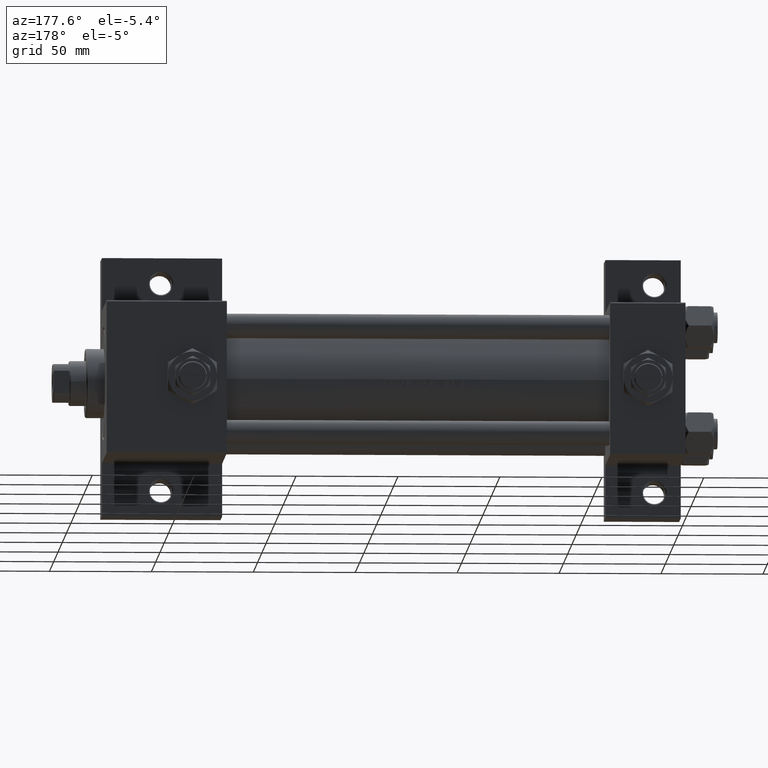
[diagram: clean part render]
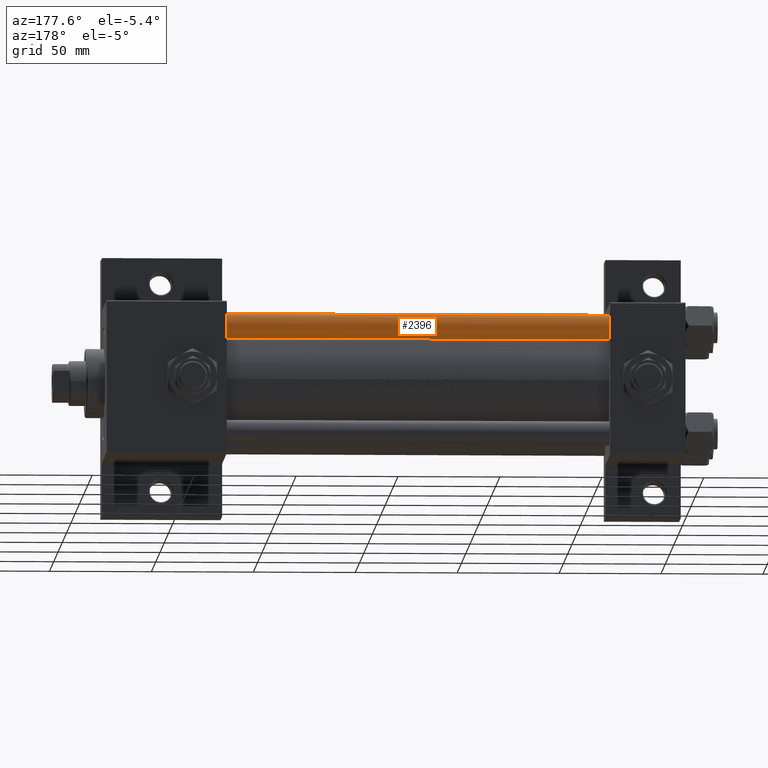
[diagram: same view with one face highlighted and labeled with its STEP entity id]
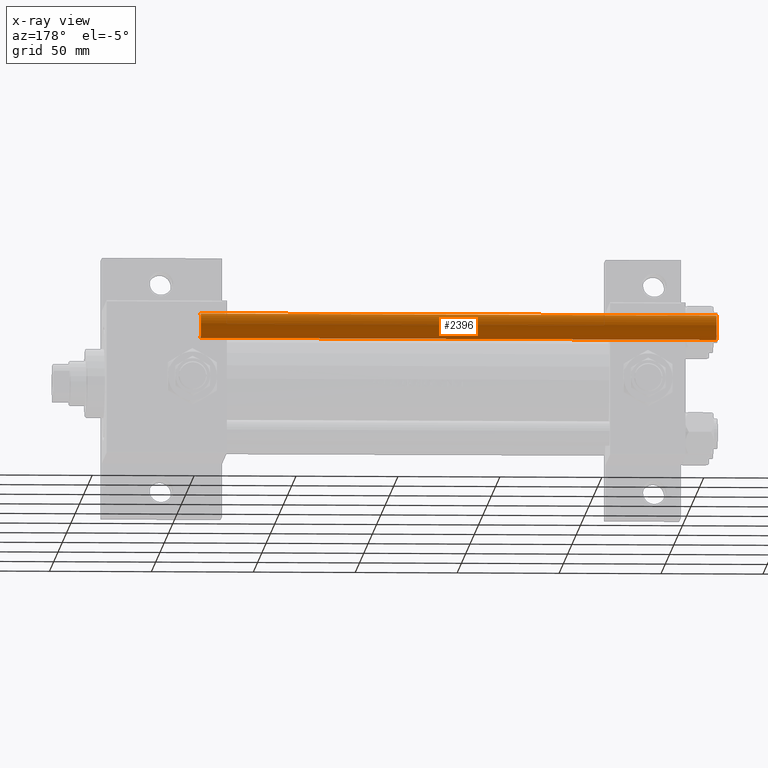
[diagram: x-ray of the same camera — body ghosted, the highlighted face saturated]
A machine part, auxiliary view. The second image highlights one B-rep face of the part: STEP entity #2396.
The next image is the same camera in x-ray: the body ghosted, the highlighted face saturated — about 0% of this face is hidden behind the body in this view.
In plain terms, the highlighted cylindrical surface (edge-blend (fillet) strip) has radius 6 mm, axis along (-1, -0, -0).
Its self-contained STEP definition (entity closure, byte-faithful):
#390 = DIRECTION ( 'NONE',  ( 0.000000000000000000, 0.000000000000000000, -1.000000000000000000 ) ) ;
#586 = CARTESIAN_POINT ( 'NONE',  ( 6.000000000000000888, 7.347880794884120722E-16, 253.5000000000000568 ) ) ;
#870 = VERTEX_POINT ( 'NONE', #1782 ) ;
#1074 = LINE ( 'NONE', #28310, #13695 ) ;
#1317 = DIRECTION ( 'NONE',  ( -0.000000000000000000, -0.000000000000000000, -1.000000000000000000 ) ) ;
#1602 = VECTOR ( 'NONE', #31919, 1000.000000000000000 ) ;
#1782 = CARTESIAN_POINT ( 'NONE',  ( -6.000000000000000888, 0.000000000000000000, 253.5000000000000568 ) ) ;
#2274 = EDGE_CURVE ( 'NONE', #870, #30457, #16768, .T. ) ;
#2396 = ADVANCED_FACE ( 'NONE', ( #6361 ), #21475, .T. ) ;
#6228 = DIRECTION ( 'NONE',  ( 1.000000000000000000, 0.000000000000000000, 0.000000000000000000 ) ) ;
#6361 = FACE_OUTER_BOUND ( 'NONE', #26938, .T. ) ;
#7860 = ORIENTED_EDGE ( 'NONE', *, *, #2274, .F. ) ;
#8062 = CARTESIAN_POINT ( 'NONE',  ( 0.000000000000000000, 0.000000000000000000, 253.5000000000000568 ) ) ;
#8892 = EDGE_CURVE ( 'NONE', #26896, #17691, #1074, .T. ) ;
#9480 = EDGE_CURVE ( 'NONE', #17691, #30457, #12142, .T. ) ;
#12142 = CIRCLE ( 'NONE', #34346, 6.000000000000000888 ) ;
#13061 = CARTESIAN_POINT ( 'NONE',  ( -6.000000000000000888, 0.000000000000000000, 254.0000000000000000 ) ) ;
#13695 = VECTOR ( 'NONE', #1317, 1000.000000000000000 ) ;
#13895 = CARTESIAN_POINT ( 'NONE',  ( 0.000000000000000000, 0.000000000000000000, 0.5000000000000004441 ) ) ;
#14389 = CARTESIAN_POINT ( 'NONE',  ( 6.000000000000000888, 7.347880794884120722E-16, 0.5000000000000004441 ) ) ;
#14730 = ORIENTED_EDGE ( 'NONE', *, *, #9480, .T. ) ;
#16768 = LINE ( 'NONE', #13061, #1602 ) ;
#17296 = ORIENTED_EDGE ( 'NONE', *, *, #8892, .T. ) ;
#17691 = VERTEX_POINT ( 'NONE', #14389 ) ;
#21079 = CIRCLE ( 'NONE', #22678, 6.000000000000000888 ) ;
#21475 = CYLINDRICAL_SURFACE ( 'NONE', #42802, 6.000000000000000888 ) ;
#22678 = AXIS2_PLACEMENT_3D ( 'NONE', #8062, #390, #27142 ) ;
#26896 = VERTEX_POINT ( 'NONE', #586 ) ;
#26938 = EDGE_LOOP ( 'NONE', ( #36894, #17296, #14730, #7860 ) ) ;
#27142 = DIRECTION ( 'NONE',  ( 1.000000000000000000, 0.000000000000000000, 0.000000000000000000 ) ) ;
#28310 = CARTESIAN_POINT ( 'NONE',  ( 6.000000000000000888, 7.347880794884120722E-16, 254.0000000000000000 ) ) ;
#30457 = VERTEX_POINT ( 'NONE', #31623 ) ;
#31623 = CARTESIAN_POINT ( 'NONE',  ( -6.000000000000000888, 0.000000000000000000, 0.5000000000000004441 ) ) ;
#31919 = DIRECTION ( 'NONE',  ( -0.000000000000000000, -0.000000000000000000, -1.000000000000000000 ) ) ;
#34346 = AXIS2_PLACEMENT_3D ( 'NONE', #13895, #44409, #6228 ) ;
#36894 = ORIENTED_EDGE ( 'NONE', *, *, #37902, .T. ) ;
#37902 = EDGE_CURVE ( 'NONE', #870, #26896, #21079, .T. ) ;
#40829 = CARTESIAN_POINT ( 'NONE',  ( 0.000000000000000000, 0.000000000000000000, 254.0000000000000000 ) ) ;
#41075 = DIRECTION ( 'NONE',  ( -0.000000000000000000, -0.000000000000000000, -1.000000000000000000 ) ) ;
#42802 = AXIS2_PLACEMENT_3D ( 'NONE', #40829, #41075, #48253 ) ;
#44409 = DIRECTION ( 'NONE',  ( -0.000000000000000000, -0.000000000000000000, 1.000000000000000000 ) ) ;
#48253 = DIRECTION ( 'NONE',  ( -1.000000000000000000, 0.000000000000000000, 0.000000000000000000 ) ) ;